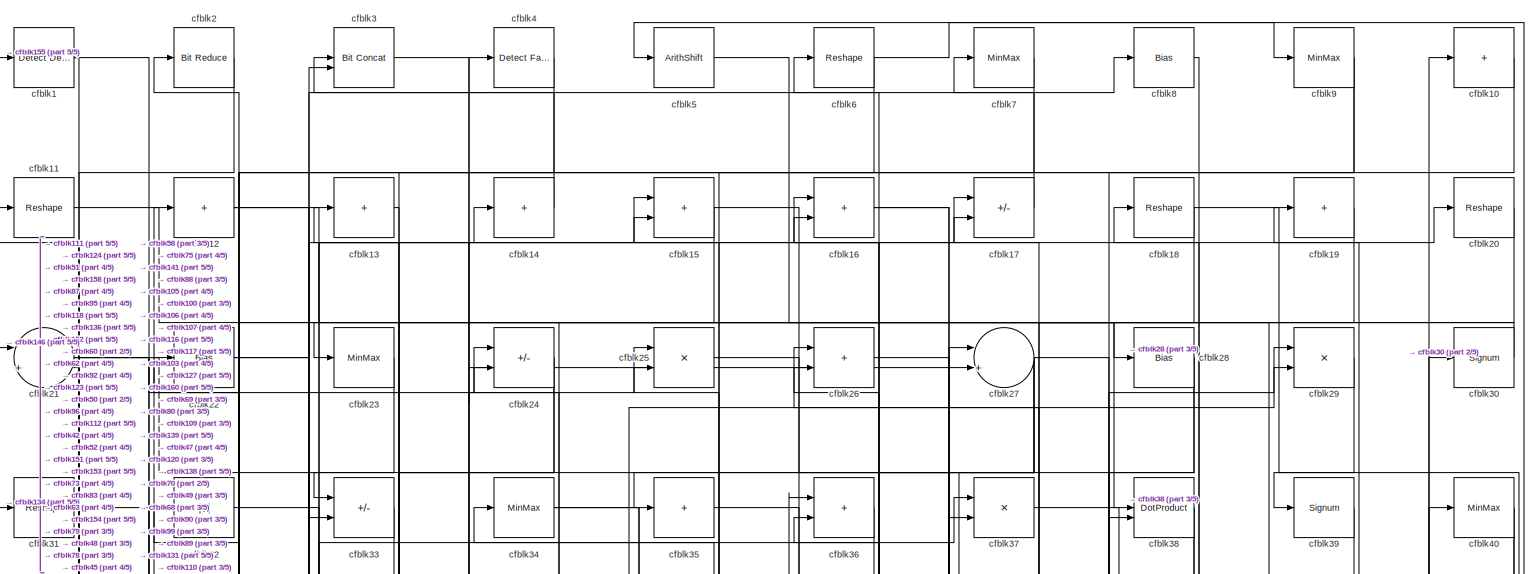
[diagram: root canvas - part 1/5, full width, top band]
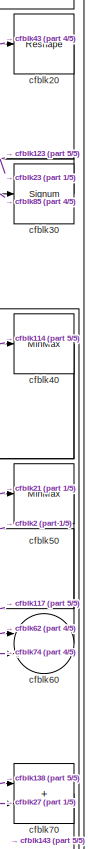
[diagram: root canvas - part 2/5, top right region]
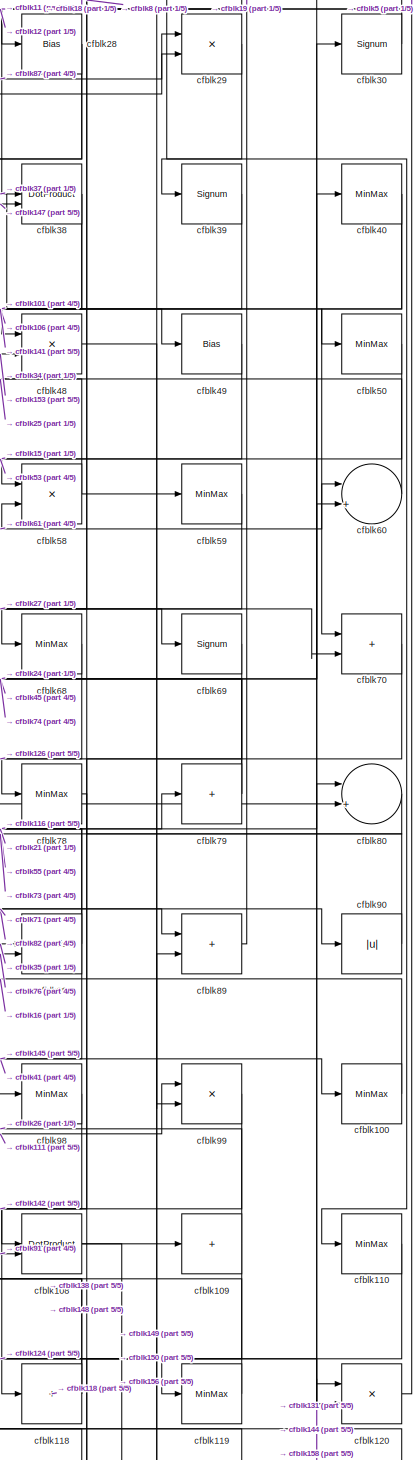
[diagram: root canvas - part 3/5, middle right region]
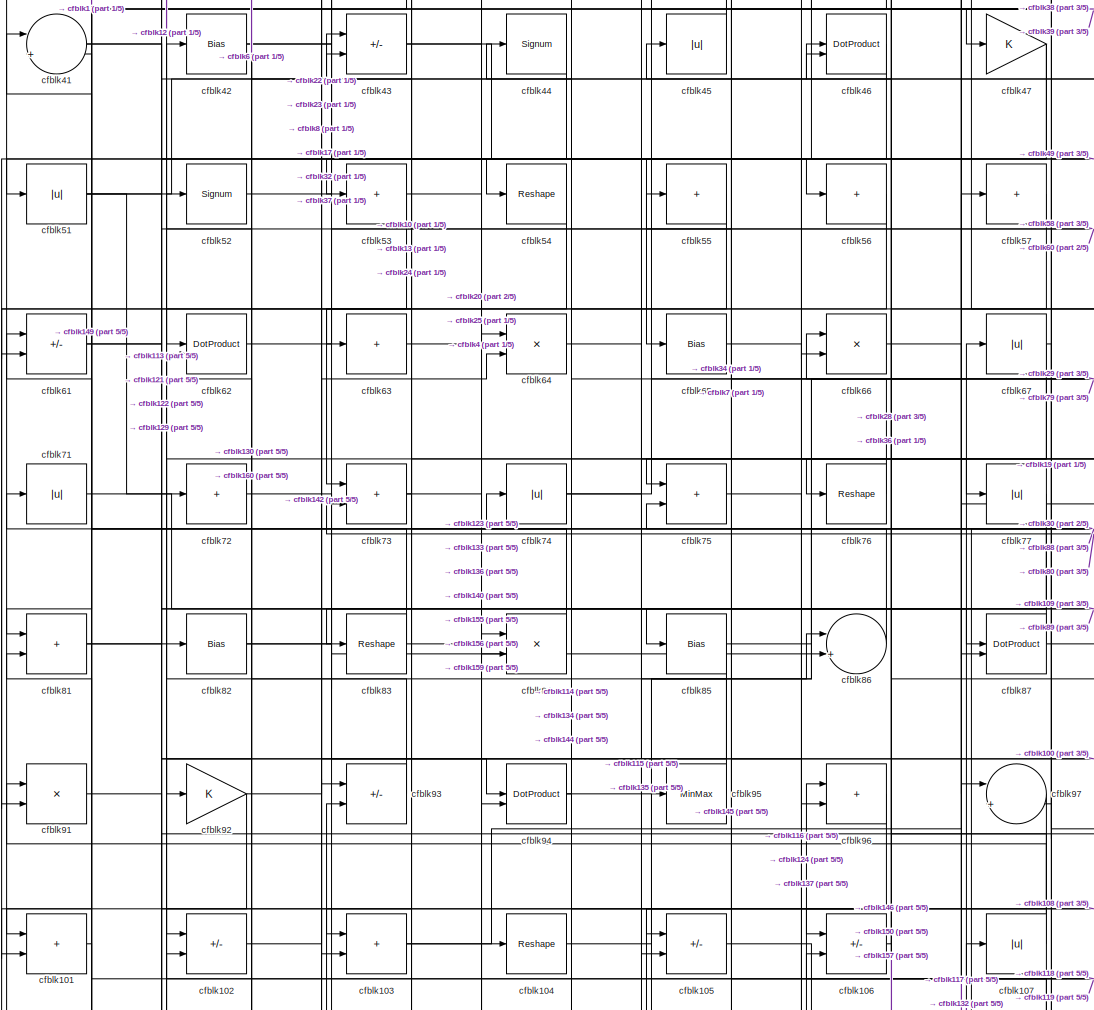
[diagram: root canvas - part 4/5, central region]
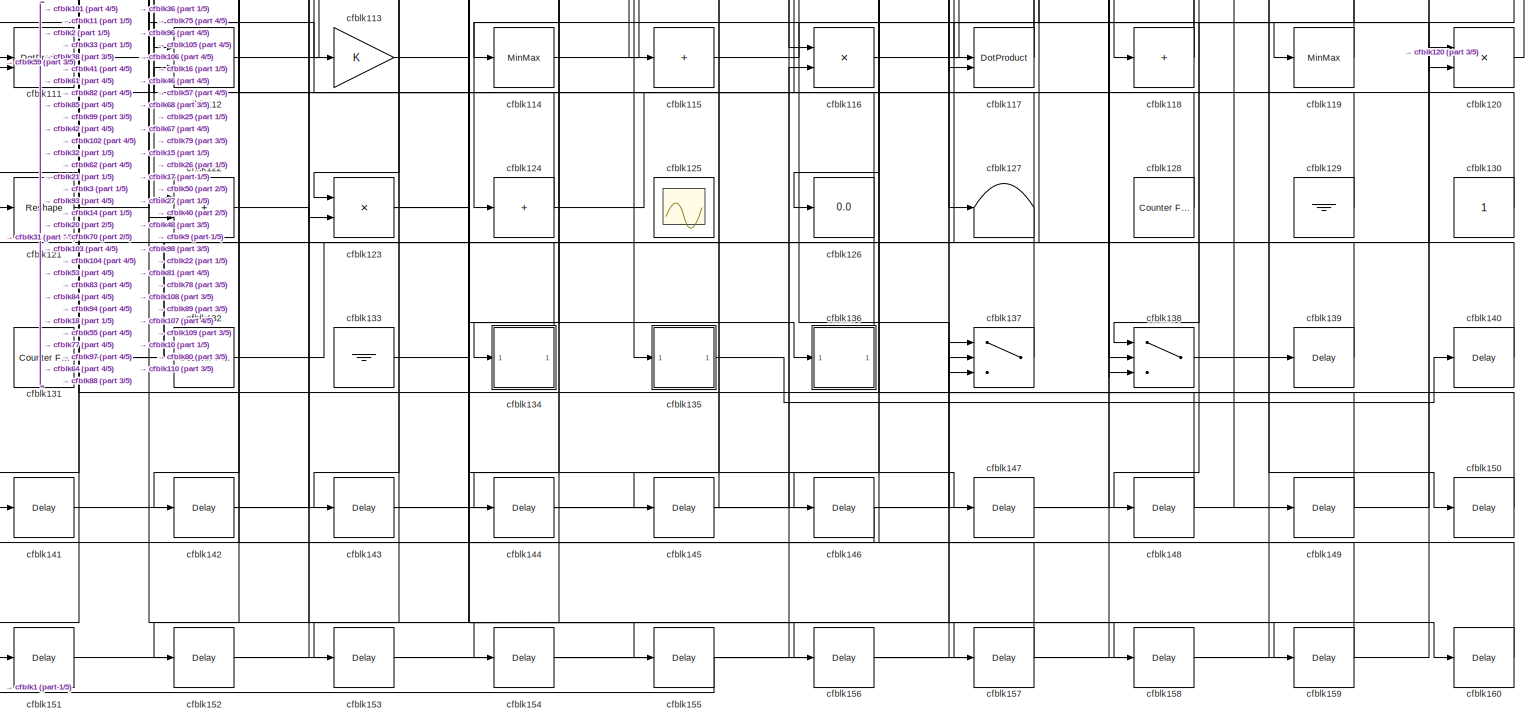
[diagram: root canvas - part 5/5, full width, bottom band]
MODEL slx_6b353bdecd4e
KIND model
CONFIG AbsTol = auto
CONFIG EnableMultiTasking = off
CONFIG FixedStep = auto
CONFIG MaxStep = auto
CONFIG MinStep = auto
CONFIG RelTol = 1e-3
CONFIG SampleTimeConstraint = Unconstrained
CONFIG SolverName = VariableStepAuto
CONFIG StartTime = 0.0
CONFIG StopTime = 10.0
BLOCK [Reference] cfblk1  REF=simulink/Logic and Bit
Operations/Detect
Decrease
  LibrarySourceBlock = hdlsllib/Logic and Bit\nOperations/Detect\nDecrease
  SourceBlock = simulink/Logic and Bit\nOperations/Detect\nDecrease
  SourceType = Detect Decrease
BLOCK [Sum] cfblk10
  IconShape = rectangular
  Inputs = +
BLOCK [MinMax] cfblk100
BLOCK [Sum] cfblk101
  IconShape = rectangular
BLOCK [Sum] cfblk102
  IconShape = rectangular
  Inputs = +-
BLOCK [Sum] cfblk103
  IconShape = rectangular
BLOCK [Reshape] cfblk104
BLOCK [Sum] cfblk105
  IconShape = rectangular
  Inputs = +-
BLOCK [Sum] cfblk106
  IconShape = rectangular
  Inputs = +-
BLOCK [Abs] cfblk107
  SaturateOnIntegerOverflow = off
BLOCK [DotProduct] cfblk108
  OutDataTypeStr = Inherit: Inherit via internal rule
BLOCK [Sum] cfblk109
  IconShape = rectangular
  Inputs = +
BLOCK [Reshape] cfblk11
BLOCK [MinMax] cfblk110
BLOCK [DotProduct] cfblk111
  OutDataTypeStr = Inherit: Inherit via internal rule
BLOCK [Product] cfblk112
  Inputs = */
  RndMeth = Zero
  SaturateOnIntegerOverflow = on
BLOCK [Gain] cfblk113
BLOCK [MinMax] cfblk114
BLOCK [Sum] cfblk115
  IconShape = rectangular
  Inputs = +
BLOCK [Product] cfblk116
  Inputs = */
  RndMeth = Zero
  SaturateOnIntegerOverflow = on
BLOCK [DotProduct] cfblk117
  OutDataTypeStr = Inherit: Inherit via internal rule
BLOCK [Sum] cfblk118
  IconShape = rectangular
  Inputs = +
BLOCK [MinMax] cfblk119
BLOCK [Sum] cfblk12
  IconShape = rectangular
  Inputs = +
BLOCK [Product] cfblk120
  Inputs = */
  RndMeth = Zero
  SaturateOnIntegerOverflow = on
BLOCK [Reshape] cfblk121
BLOCK [Sum] cfblk122
  IconShape = rectangular
BLOCK [Product] cfblk123
  Inputs = */
  RndMeth = Zero
  SaturateOnIntegerOverflow = on
BLOCK [Sum] cfblk124
  IconShape = rectangular
  Inputs = +
BLOCK [Scope] cfblk125
  Floating = on
  NumInputPorts = 1
  ScopeSpecificationString = Simulink.scopes.TimeScopeBlockCfg('CurrentConfiguration', extmgr.ConfigurationSet(extmgr.Configuration('Core','General UI',true,'FigureColor',[0.156862745098039 0.156862745098039 0.156862745098039]),extmgr.Configuration('Core','Source UI',true),extmgr.Configuration('Sources','WiredSimulink',true,'DataLoggingVariableName','ScopeData1','DataLoggingSaveFormat','StructureWithTime','DataLoggingLimitDat...<+2713ch>
BLOCK [Display] cfblk126
  Decimation = 1
BLOCK [Terminator] cfblk127
BLOCK [Reference] cfblk128  REF=hdlsllib/Sources/Counter
Free-Running
  SourceBlock = hdlsllib/Sources/Counter\nFree-Running
  SourceType = Counter Free-Running
BLOCK [Ground] cfblk129
BLOCK [Sum] cfblk13
  IconShape = rectangular
  Inputs = +
BLOCK [Constant] cfblk130
  SampleTime = -1
BLOCK [Reference] cfblk131  REF=hdlsllib/Sources/Counter
Free-Running
  SourceBlock = hdlsllib/Sources/Counter\nFree-Running
  SourceType = Counter Free-Running
BLOCK [Reference] cfblk132  REF=hdlsllib/Sources/Counter
Free-Running
  SourceBlock = hdlsllib/Sources/Counter\nFree-Running
  SourceType = Counter Free-Running
BLOCK [Ground] cfblk133
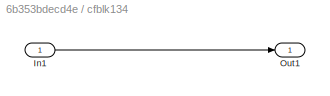
BLOCK [SubSystem] cfblk134
  LibrarySourceBlock = hdlsllib/Ports &\nSubsystems/Subsystem
BLOCK [Inport] cfblk134/In1
BLOCK [Outport] cfblk134/Out1
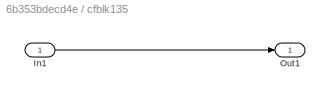
BLOCK [SubSystem] cfblk135
  LibrarySourceBlock = hdlsllib/Ports &\nSubsystems/Subsystem
BLOCK [Inport] cfblk135/In1
BLOCK [Outport] cfblk135/Out1
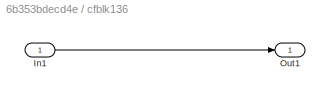
BLOCK [SubSystem] cfblk136
  LibrarySourceBlock = hdlsllib/Ports &\nSubsystems/Subsystem
BLOCK [Inport] cfblk136/In1
BLOCK [Outport] cfblk136/Out1
BLOCK [Switch] cfblk137
  InputSameDT = off
  SaturateOnIntegerOverflow = off
BLOCK [Switch] cfblk138
  InputSameDT = off
  SaturateOnIntegerOverflow = off
BLOCK [Delay] cfblk139
  InputPortMap = u0
  SampleTime = 1
BLOCK [Sum] cfblk14
  IconShape = rectangular
  Inputs = +
BLOCK [Delay] cfblk140
  InputPortMap = u0
  SampleTime = 1
BLOCK [Delay] cfblk141
  InputPortMap = u0
  SampleTime = 1
BLOCK [Delay] cfblk142
  InputPortMap = u0
  SampleTime = 1
BLOCK [Delay] cfblk143
  InputPortMap = u0
  SampleTime = 1
BLOCK [Delay] cfblk144
  InputPortMap = u0
  SampleTime = 1
BLOCK [Delay] cfblk145
  InputPortMap = u0
  SampleTime = 1
BLOCK [Delay] cfblk146
  InputPortMap = u0
  SampleTime = 1
BLOCK [Delay] cfblk147
  InputPortMap = u0
  SampleTime = 1
BLOCK [Delay] cfblk148
  InputPortMap = u0
  SampleTime = 1
BLOCK [Delay] cfblk149
  InputPortMap = u0
  SampleTime = 1
BLOCK [Sum] cfblk15
  IconShape = rectangular
BLOCK [Delay] cfblk150
  InputPortMap = u0
  SampleTime = 1
BLOCK [Delay] cfblk151
  InputPortMap = u0
  SampleTime = 1
BLOCK [Delay] cfblk152
  InputPortMap = u0
  SampleTime = 1
BLOCK [Delay] cfblk153
  InputPortMap = u0
  SampleTime = 1
BLOCK [Delay] cfblk154
  InputPortMap = u0
  SampleTime = 1
BLOCK [Delay] cfblk155
  InputPortMap = u0
  SampleTime = 1
BLOCK [Delay] cfblk156
  InputPortMap = u0
  SampleTime = 1
BLOCK [Delay] cfblk157
  InputPortMap = u0
  SampleTime = 1
BLOCK [Delay] cfblk158
  InputPortMap = u0
  SampleTime = 1
BLOCK [Delay] cfblk159
  InputPortMap = u0
  SampleTime = 1
BLOCK [Sum] cfblk16
  IconShape = rectangular
BLOCK [Delay] cfblk160
  InputPortMap = u0
  SampleTime = 1
BLOCK [Sum] cfblk17
  IconShape = rectangular
  Inputs = +-
BLOCK [Reshape] cfblk18
BLOCK [Sum] cfblk19
  IconShape = rectangular
  Inputs = +
BLOCK [Reference] cfblk2  REF=hdlsllib/Logic and Bit
Operations/Bit Reduce
  SourceBlock = hdlsllib/Logic and Bit\nOperations/Bit Reduce
  SourceType = Bit Reduce
BLOCK [Reshape] cfblk20
BLOCK [Sum] cfblk21
  Inputs = |++
BLOCK [Bias] cfblk22
  Bias = 0.0
  SaturateOnIntegerOverflow = off
BLOCK [MinMax] cfblk23
BLOCK [Sum] cfblk24
  IconShape = rectangular
  Inputs = +-
BLOCK [Product] cfblk25
  Inputs = */
  RndMeth = Zero
  SaturateOnIntegerOverflow = on
BLOCK [Sum] cfblk26
  IconShape = rectangular
BLOCK [Sum] cfblk27
  Inputs = |++
BLOCK [Bias] cfblk28
  Bias = 0.0
  SaturateOnIntegerOverflow = off
BLOCK [Product] cfblk29
  Inputs = */
  RndMeth = Zero
  SaturateOnIntegerOverflow = on
BLOCK [Reference] cfblk3  REF=hdlsllib/Logic and Bit
Operations/Bit Concat
  SourceBlock = hdlsllib/Logic and Bit\nOperations/Bit Concat
  SourceType = Bit Concat
BLOCK [Signum] cfblk30
BLOCK [Reshape] cfblk31
BLOCK [Abs] cfblk32
  SaturateOnIntegerOverflow = off
BLOCK [Sum] cfblk33
  IconShape = rectangular
  Inputs = +-
BLOCK [MinMax] cfblk34
BLOCK [Sum] cfblk35
  IconShape = rectangular
  Inputs = +
BLOCK [Sum] cfblk36
  IconShape = rectangular
BLOCK [Product] cfblk37
  Inputs = */
  RndMeth = Zero
  SaturateOnIntegerOverflow = on
BLOCK [DotProduct] cfblk38
  OutDataTypeStr = Inherit: Inherit via internal rule
BLOCK [Signum] cfblk39
BLOCK [Reference] cfblk4  REF=hdlsllib/Logic and Bit
Operations/Detect Fall
Nonpositive
  SourceBlock = hdlsllib/Logic and Bit\nOperations/Detect Fall\nNonpositive
  SourceType = Detect Fall Nonpositive
BLOCK [MinMax] cfblk40
BLOCK [Sum] cfblk41
  Inputs = |++
BLOCK [Bias] cfblk42
  Bias = 0.0
  SaturateOnIntegerOverflow = off
BLOCK [Sum] cfblk43
  IconShape = rectangular
  Inputs = +-
BLOCK [Signum] cfblk44
BLOCK [Abs] cfblk45
  SaturateOnIntegerOverflow = off
BLOCK [DotProduct] cfblk46
  OutDataTypeStr = Inherit: Inherit via internal rule
BLOCK [Gain] cfblk47
BLOCK [Product] cfblk48
  Inputs = */
  RndMeth = Zero
  SaturateOnIntegerOverflow = on
BLOCK [Bias] cfblk49
  Bias = 0.0
  SaturateOnIntegerOverflow = off
BLOCK [ArithShift] cfblk5
  BitShiftNumber = 8
  InputPortMap = u0
BLOCK [MinMax] cfblk50
BLOCK [Abs] cfblk51
  SaturateOnIntegerOverflow = off
BLOCK [Signum] cfblk52
BLOCK [Sum] cfblk53
  IconShape = rectangular
  Inputs = +
BLOCK [Reshape] cfblk54
BLOCK [Sum] cfblk55
  IconShape = rectangular
  Inputs = +
BLOCK [Sum] cfblk56
  IconShape = rectangular
  Inputs = +
BLOCK [Sum] cfblk57
  IconShape = rectangular
  Inputs = +
BLOCK [Product] cfblk58
  Inputs = */
  RndMeth = Zero
  SaturateOnIntegerOverflow = on
BLOCK [MinMax] cfblk59
BLOCK [Reshape] cfblk6
BLOCK [Sum] cfblk60
  Inputs = |++
BLOCK [Sum] cfblk61
  IconShape = rectangular
  Inputs = +-
BLOCK [DotProduct] cfblk62
  OutDataTypeStr = Inherit: Inherit via internal rule
BLOCK [Sum] cfblk63
  IconShape = rectangular
  Inputs = +
BLOCK [Product] cfblk64
  Inputs = */
  RndMeth = Zero
  SaturateOnIntegerOverflow = on
BLOCK [Bias] cfblk65
  Bias = 0.0
  SaturateOnIntegerOverflow = off
BLOCK [Product] cfblk66
  Inputs = */
  RndMeth = Zero
  SaturateOnIntegerOverflow = on
BLOCK [Abs] cfblk67
  SaturateOnIntegerOverflow = off
BLOCK [MinMax] cfblk68
BLOCK [Signum] cfblk69
BLOCK [MinMax] cfblk7
BLOCK [Sum] cfblk70
  IconShape = rectangular
BLOCK [Abs] cfblk71
  SaturateOnIntegerOverflow = off
BLOCK [Sum] cfblk72
  IconShape = rectangular
  Inputs = +
BLOCK [Sum] cfblk73
  IconShape = rectangular
BLOCK [Abs] cfblk74
  SaturateOnIntegerOverflow = off
BLOCK [Sum] cfblk75
  IconShape = rectangular
BLOCK [Reshape] cfblk76
BLOCK [Abs] cfblk77
  SaturateOnIntegerOverflow = off
BLOCK [MinMax] cfblk78
BLOCK [Sum] cfblk79
  IconShape = rectangular
  Inputs = +
BLOCK [Bias] cfblk8
  Bias = 0.0
  SaturateOnIntegerOverflow = off
BLOCK [Sum] cfblk80
  Inputs = |++
BLOCK [Sum] cfblk81
  IconShape = rectangular
BLOCK [Bias] cfblk82
  Bias = 0.0
  SaturateOnIntegerOverflow = off
BLOCK [Reshape] cfblk83
BLOCK [Product] cfblk84
  Inputs = */
  RndMeth = Zero
  SaturateOnIntegerOverflow = on
BLOCK [Bias] cfblk85
  Bias = 0.0
  SaturateOnIntegerOverflow = off
BLOCK [Sum] cfblk86
  Inputs = |++
BLOCK [DotProduct] cfblk87
  OutDataTypeStr = Inherit: Inherit via internal rule
BLOCK [DotProduct] cfblk88
  OutDataTypeStr = Inherit: Inherit via internal rule
BLOCK [Sum] cfblk89
  IconShape = rectangular
BLOCK [MinMax] cfblk9
BLOCK [Abs] cfblk90
  SaturateOnIntegerOverflow = off
BLOCK [Product] cfblk91
  Inputs = */
  RndMeth = Zero
  SaturateOnIntegerOverflow = on
BLOCK [Gain] cfblk92
BLOCK [Sum] cfblk93
  IconShape = rectangular
  Inputs = +-
BLOCK [DotProduct] cfblk94
  OutDataTypeStr = Inherit: Inherit via internal rule
BLOCK [MinMax] cfblk95
BLOCK [Sum] cfblk96
  IconShape = rectangular
BLOCK [Sum] cfblk97
  Inputs = |++
BLOCK [MinMax] cfblk98
BLOCK [Product] cfblk99
  Inputs = */
  RndMeth = Zero
  SaturateOnIntegerOverflow = on
LINE cfblk100:1 -> cfblk16:1
LINE cfblk101:1 -> cfblk121:1
LINE cfblk102:1 -> cfblk64:2
NET cfblk103:1 -> cfblk156:1, cfblk37:2
LINE cfblk104:1 -> cfblk57:1
LINE cfblk105:1 -> cfblk137:3
LINE cfblk106:1 -> cfblk6:1
NET cfblk107:1 -> cfblk36:2, cfblk91:1
NET cfblk108:1 -> cfblk149:1, cfblk150:1
NET cfblk109:1 -> cfblk148:1, cfblk26:1
LINE cfblk10:1 -> cfblk103:1
LINE cfblk110:1 -> cfblk124:1
LINE cfblk111:1 -> cfblk99:1
LINE cfblk112:1 -> cfblk14:1
LINE cfblk113:1 -> cfblk159:1
LINE cfblk114:1 -> cfblk40:1
LINE cfblk115:1 -> cfblk119:1
NET cfblk116:1 -> cfblk16:2, cfblk79:1
NET cfblk117:1 -> cfblk15:1, cfblk26:2
NET cfblk118:1 -> cfblk22:1, cfblk81:2
LINE cfblk119:1 -> cfblk107:1
LINE cfblk11:1 -> cfblk38:1
LINE cfblk120:1 -> cfblk5:1
LINE cfblk121:1 -> cfblk82:1
LINE cfblk122:1 -> cfblk157:1
NET cfblk123:1 -> cfblk104:1, cfblk147:1
NET cfblk124:1 -> cfblk11:1, cfblk96:1
LINE cfblk128:1 -> cfblk112:2
LINE cfblk129:1 -> cfblk42:1
NET cfblk12:1 -> cfblk33:2, cfblk99:2
LINE cfblk130:1 -> cfblk62:2
NET cfblk131:1 -> cfblk10:1, cfblk98:1
LINE cfblk132:1 -> cfblk67:1
LINE cfblk133:1 -> cfblk94:2
LINE cfblk134/In1:1 -> cfblk134/Out1:1
LINE cfblk134:1 -> cfblk31:1
LINE cfblk135/In1:1 -> cfblk135/Out1:1
LINE cfblk135:1 -> cfblk140:1
LINE cfblk136/In1:1 -> cfblk136/Out1:1
LINE cfblk136:1 -> cfblk32:1
LINE cfblk137:1 -> cfblk93:2
LINE cfblk138:1 -> cfblk139:1
LINE cfblk139:1 -> cfblk17:2
LINE cfblk13:1 -> cfblk33:1
LINE cfblk140:1 -> cfblk84:1
LINE cfblk141:1 -> cfblk36:1
LINE cfblk142:1 -> cfblk93:1
LINE cfblk143:1 -> cfblk137:2
LINE cfblk144:1 -> cfblk120:1
LINE cfblk145:1 -> cfblk75:2
LINE cfblk146:1 -> cfblk21:1
LINE cfblk147:1 -> cfblk38:2
LINE cfblk148:1 -> cfblk137:1
LINE cfblk149:1 -> cfblk41:1
LINE cfblk14:1 -> cfblk3:1
LINE cfblk150:1 -> cfblk106:2
LINE cfblk151:1 -> cfblk27:1
LINE cfblk152:1 -> cfblk3:2
LINE cfblk153:1 -> cfblk48:2
LINE cfblk154:1 -> cfblk116:2
LINE cfblk155:1 -> cfblk1:1
LINE cfblk156:1 -> cfblk89:2
LINE cfblk157:1 -> cfblk46:2
LINE cfblk158:1 -> cfblk80:1
LINE cfblk159:1 -> cfblk64:1
NET cfblk15:1 -> cfblk152:1, cfblk58:1
LINE cfblk160:1 -> cfblk102:2
NET cfblk16:1 -> cfblk160:1, cfblk80:2
LINE cfblk17:1 -> cfblk7:1
NET cfblk18:1 -> cfblk110:1, cfblk154:1
LINE cfblk19:1 -> cfblk47:1
NET cfblk1:1 -> cfblk51:1, cfblk87:2
LINE cfblk20:1 -> cfblk123:1
NET cfblk21:1 -> cfblk123:2, cfblk24:2, cfblk50:1
NET cfblk22:1 -> cfblk15:2, cfblk96:2
LINE cfblk23:1 -> cfblk103:2
NET cfblk24:1 -> cfblk63:1, cfblk83:1
LINE cfblk25:1 -> cfblk127:1
LINE cfblk26:1 -> cfblk69:1
NET cfblk27:1 -> cfblk120:2, cfblk153:1, cfblk35:1, cfblk70:2
NET cfblk28:1 -> cfblk76:1, cfblk88:2
LINE cfblk29:1 -> cfblk39:1
LINE cfblk2:1 -> cfblk111:1
LINE cfblk30:1 -> cfblk23:1
LINE cfblk31:1 -> cfblk158:1
LINE cfblk32:1 -> cfblk95:1
LINE cfblk33:1 -> cfblk151:1
NET cfblk34:1 -> cfblk48:1, cfblk78:1
LINE cfblk35:1 -> cfblk88:1
LINE cfblk36:1 -> cfblk105:1
LINE cfblk37:1 -> cfblk49:1
NET cfblk38:1 -> cfblk106:1, cfblk141:1
LINE cfblk39:1 -> cfblk101:1
LINE cfblk3:1 -> cfblk27:2
NET cfblk40:1 -> cfblk138:3, cfblk70:1
NET cfblk41:1 -> cfblk100:1, cfblk54:1
NET cfblk42:1 -> cfblk117:2, cfblk37:1
NET cfblk43:1 -> cfblk20:1, cfblk66:2
LINE cfblk44:1 -> cfblk84:2
LINE cfblk45:1 -> cfblk34:1
LINE cfblk46:1 -> cfblk81:1
NET cfblk47:1 -> cfblk61:2, cfblk65:1
LINE cfblk48:1 -> cfblk90:1
LINE cfblk49:1 -> cfblk53:1
LINE cfblk4:1 -> cfblk92:1
LINE cfblk50:1 -> cfblk117:1
NET cfblk51:1 -> cfblk46:1, cfblk56:1, cfblk72:1
LINE cfblk52:1 -> cfblk17:1
NET cfblk53:1 -> cfblk155:1, cfblk91:2
LINE cfblk54:1 -> cfblk102:1
LINE cfblk55:1 -> cfblk114:1
LINE cfblk56:1 -> cfblk73:1
LINE cfblk57:1 -> cfblk146:1
NET cfblk58:1 -> cfblk25:2, cfblk59:1
LINE cfblk59:1 -> cfblk111:2
LINE cfblk5:1 -> cfblk28:1
LINE cfblk60:1 -> cfblk2:1
NET cfblk61:1 -> cfblk113:1, cfblk58:2
LINE cfblk62:1 -> cfblk60:1
LINE cfblk63:1 -> cfblk25:1
LINE cfblk64:1 -> cfblk115:1
LINE cfblk65:1 -> cfblk77:1
LINE cfblk66:1 -> cfblk97:1
NET cfblk67:1 -> cfblk105:2, cfblk122:1, cfblk97:2
LINE cfblk68:1 -> cfblk126:1
LINE cfblk69:1 -> cfblk108:1
NET cfblk6:1 -> cfblk62:1, cfblk9:1
LINE cfblk70:1 -> cfblk143:1
LINE cfblk71:1 -> cfblk109:1
LINE cfblk72:1 -> cfblk94:1
NET cfblk73:1 -> cfblk13:1, cfblk4:1
NET cfblk74:1 -> cfblk29:2, cfblk60:2
LINE cfblk75:1 -> cfblk116:1
LINE cfblk76:1 -> cfblk66:1
NET cfblk77:1 -> cfblk134:1, cfblk85:1
LINE cfblk78:1 -> cfblk138:1
NET cfblk79:1 -> cfblk24:1, cfblk45:1
LINE cfblk7:1 -> cfblk75:1
LINE cfblk80:1 -> cfblk73:2
NET cfblk81:1 -> cfblk43:2, cfblk87:1
NET cfblk82:1 -> cfblk86:2, cfblk89:1
NET cfblk83:1 -> cfblk136:1, cfblk71:1
NET cfblk84:1 -> cfblk41:2, cfblk43:1
NET cfblk85:1 -> cfblk122:2, cfblk30:1
LINE cfblk86:1 -> cfblk61:1
NET cfblk87:1 -> cfblk29:1, cfblk44:1
NET cfblk88:1 -> cfblk145:1, cfblk21:2, cfblk55:1
LINE cfblk89:1 -> cfblk19:1
LINE cfblk8:1 -> cfblk68:1
LINE cfblk90:1 -> cfblk18:1
LINE cfblk91:1 -> cfblk108:2
NET cfblk92:1 -> cfblk101:2, cfblk8:1
LINE cfblk93:1 -> cfblk52:1
NET cfblk94:1 -> cfblk74:1, cfblk86:1
LINE cfblk95:1 -> cfblk12:1
LINE cfblk96:1 -> cfblk135:1
LINE cfblk97:1 -> cfblk144:1
LINE cfblk98:1 -> cfblk118:1
LINE cfblk99:1 -> cfblk142:1
NET cfblk9:1 -> cfblk112:1, cfblk138:2
note: NET lines group one-source signal fan-out (src -> all destinations, sorted); 1:1 wires keep LINE
